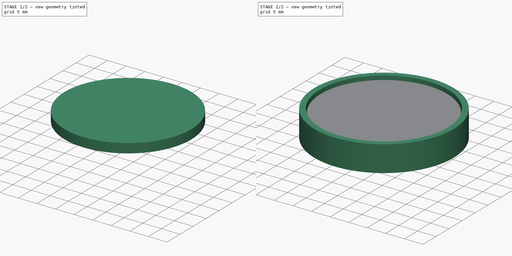
[diagram: build sequence overview — one tinted view per stage of 2, left to right]
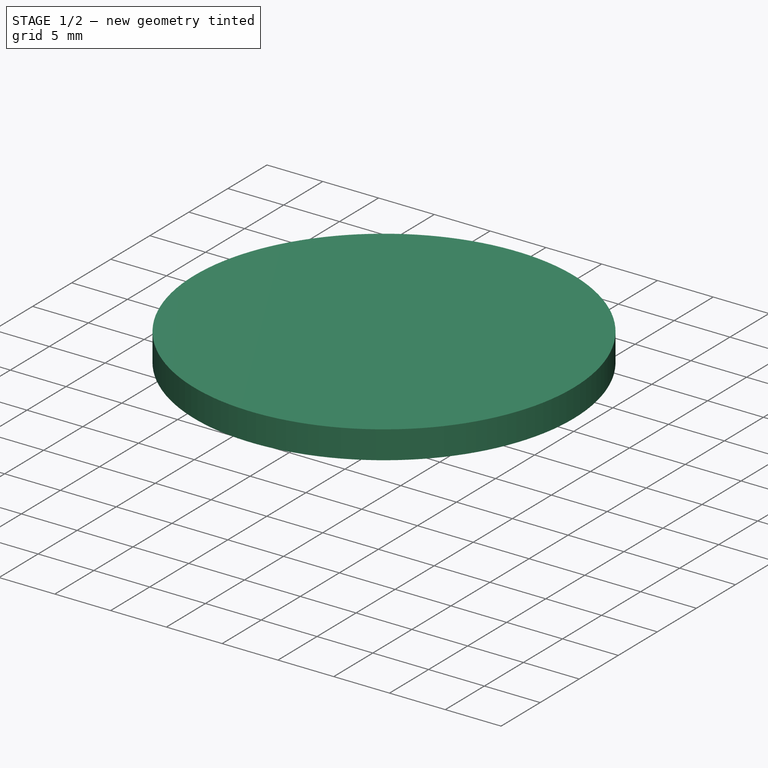
[diagram: stage 1 of 2 — iso view after this stage's code; geometry added in this stage tinted green]
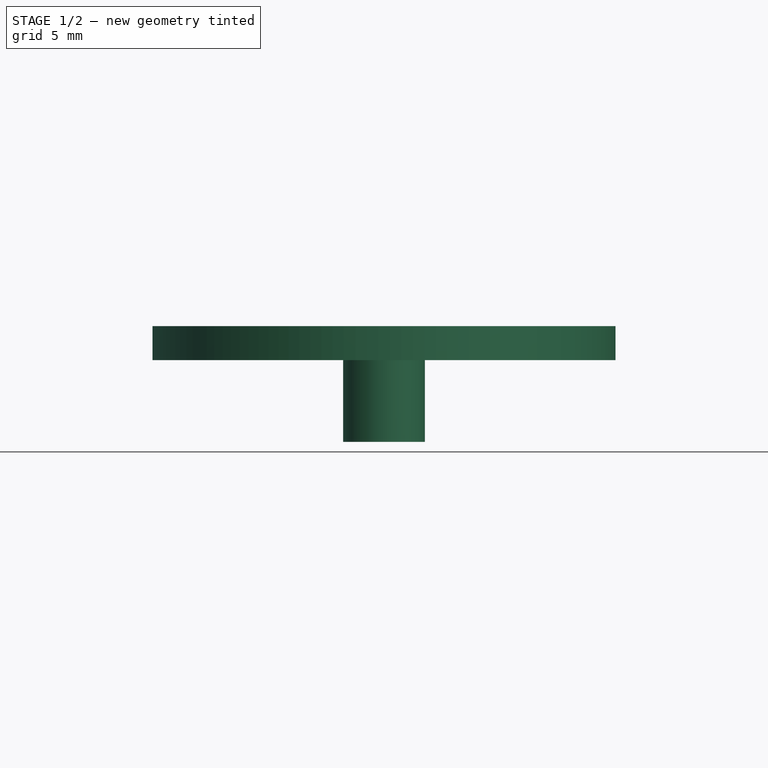
[diagram: stage 1 of 2 — front view after this stage's code; geometry added in this stage tinted green]
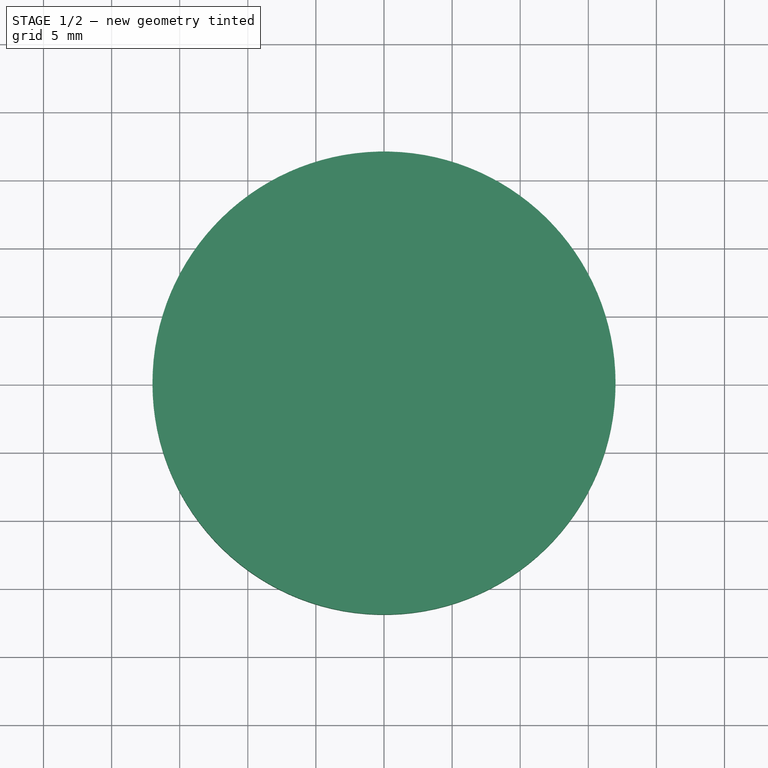
[diagram: stage 1 of 2 — top view after this stage's code; geometry added in this stage tinted green]
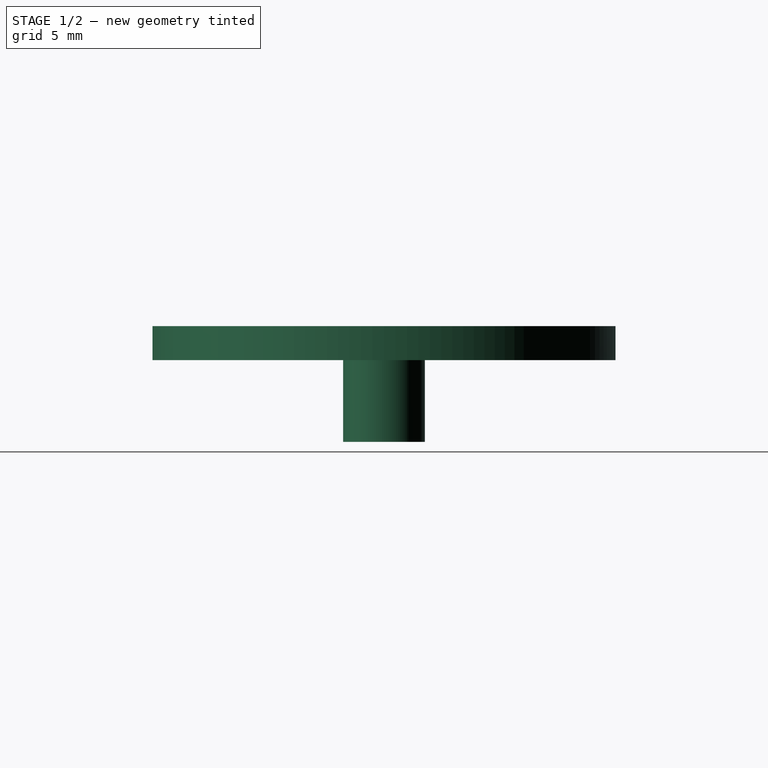
[diagram: stage 1 of 2 — right view after this stage's code; geometry added in this stage tinted green]
FCSTD DOCUMENT  (FreeCAD 0.19R24415 (Git))
Label: ORingMold
License: All rights reserved
LicenseURL: http://en.wikipedia.org/wiki/All_rights_reserved
objects: PartDesign::Body×3, Sketcher::SketchObject×2, PartDesign::Revolution×2, Spreadsheet::Sheet×1, PartDesign::FeatureBase×1
note: 10 computed .brp shape members not serialized (recipe doc carries the construction recipe); baked Part::Feature solids carry a one-line shape summary decoded from their .brp

FEATURE [PartDesign::Body] Body  label="ORingMold_16mm_outer_stl"
  Group = -> [Sketch,Revolution]
  Origin = -> Origin
  Tip = -> Revolution
FEATURE [Sketcher::SketchObject] Sketch001
  FullyConstrained = true
  MapMode = 5
  Placement = pos=(0,0,0) rot=(1,0,0;1.5708rad)
  Support = -> [XZ_Plane001]
  expr: Constraints[3] = <<P>>.thickness
  expr: Constraints[4] = <<P>>.outer_diameter
  sketch-geometry (9):
    g0: ArcOfCircle CenterX=-14.5 CenterY=0 CenterZ=0 NormalX=0 NormalY=0 NormalZ=1 AngleXU=0 Radius=1.5 StartAngle=0 EndAngle=3.14159
    g1: LineSegment StartX=0 StartY=2.5 StartZ=0 EndX=-17 EndY=2.5 EndZ=0
    g2: LineSegment StartX=-17 StartY=2.5 StartZ=0 EndX=-17 EndY=0 EndZ=0
    g3: LineSegment StartX=-17 StartY=2e-16 StartZ=0 EndX=-16 EndY=2e-16 EndZ=0
    g4: GeomPoint X=-14.5 Y=1.5 Z=0
    g5: LineSegment StartX=0 StartY=2.5 StartZ=0 EndX=0 EndY=-6 EndZ=0
    g6: LineSegment StartX=0 StartY=-6 StartZ=0 EndX=-3 EndY=-6 EndZ=0
    g7: LineSegment StartX=-3 StartY=-6 StartZ=0 EndX=-3 EndY=0 EndZ=0
    g8: LineSegment StartX=-3 StartY=0 StartZ=0 EndX=-13 EndY=0 EndZ=0
  constraints (27):
    c: PointOnObject(g0,g-1)
    c: PointOnObject(g0,g-1)
    c: PointOnObject(g0,g-1)
    c: Diameter(g0) = 3
    c: DistanceX(g0,g-1) = 16
    c: Horizontal(g1)
    c: Coincident(g1,g2)
    c: Vertical(g2)
    c: Coincident(g2,g3)
    c: Coincident(g3,g0)
    c: Horizontal(g3)
    c: DistanceX(g3,g3) = 1
    c: PointOnObject(g4,g0)
    c: Vertical(g4,g0)
    c: DistanceY(g4,g1) = 1
    c: PointOnObject(g1,g-2)
    c: Coincident(g1,g5)
    c: PointOnObject(g5,g-2)
    c: Coincident(g5,g6)
    c: Horizontal(g6)
    c: Coincident(g6,g7)
    c: PointOnObject(g7,g-1)
    c: Coincident(g7,g8)
    c: Vertical(g7)
    c: DistanceX(g6,g6) = 3
    c: Coincident(g8,g0)
    c: DistanceY(g7,g7) = 6
FEATURE [PartDesign::Revolution] Revolution001
  Angle = 360
  Axis = (0,2e-16,1)
  Base = (0,0,0)
  Placement = pos=(0,0,0) rot=(1,0,0;1.5708rad)
  Profile = -> Sketch001
  ReferenceAxis = -> Sketch001 [V_Axis]
FEATURE [PartDesign::Body] Body001  label="ORingMold_16mm_inner"
  Group = -> [Sketch001,Revolution001]
  Origin = -> Origin001
  Tip = -> Revolution001
FEATURE [Spreadsheet::Sheet] Spreadsheet  label="P"
  cells = A1=Thickness; B1(thickness)==3mm; A2=OuterDiameter; B2(outer_diameter)==16mm; A3=PrintClearance; B3(print_clearance)==0.2mm
FEATURE [PartDesign::FeatureBase] Clone
  BaseFeature = -> Body001
FEATURE [PartDesign::Body] Body002  label="ORingMold_16mm_inner_stl"
  BaseFeature = -> Body001
  Group = -> [Clone]
  Origin = -> Origin002
  Placement = pos=(0,0,0) rot=(0,1,0;3.14159rad)
  Tip = -> Clone
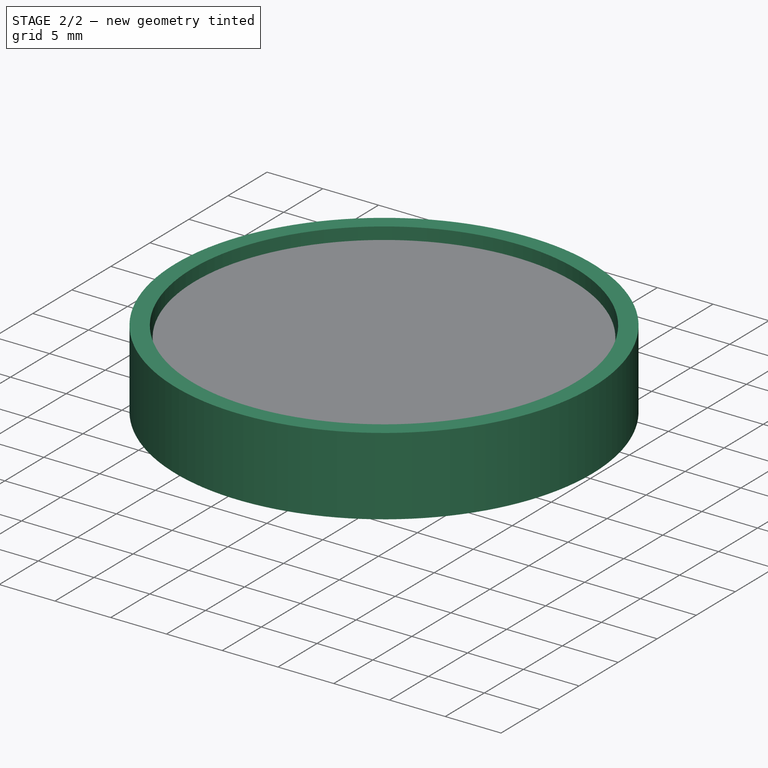
[diagram: stage 2 of 2 — iso view after this stage's code; geometry added in this stage tinted green]
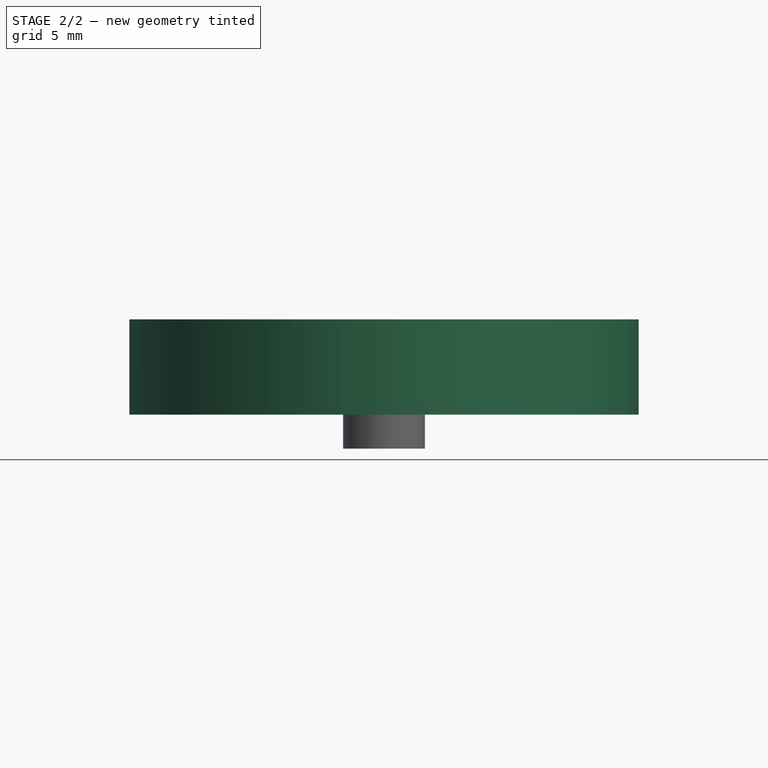
[diagram: stage 2 of 2 — front view after this stage's code; geometry added in this stage tinted green]
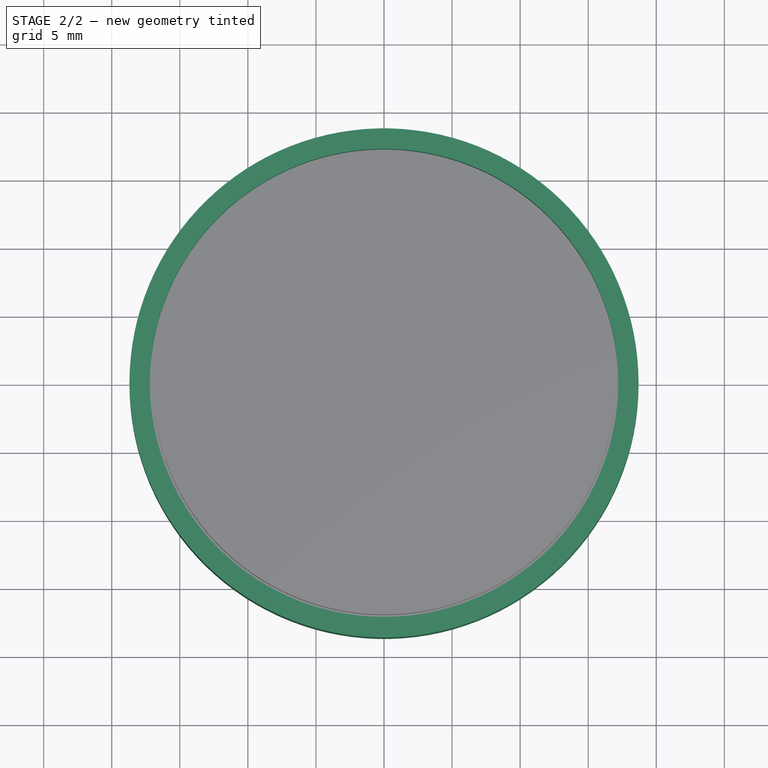
[diagram: stage 2 of 2 — top view after this stage's code; geometry added in this stage tinted green]
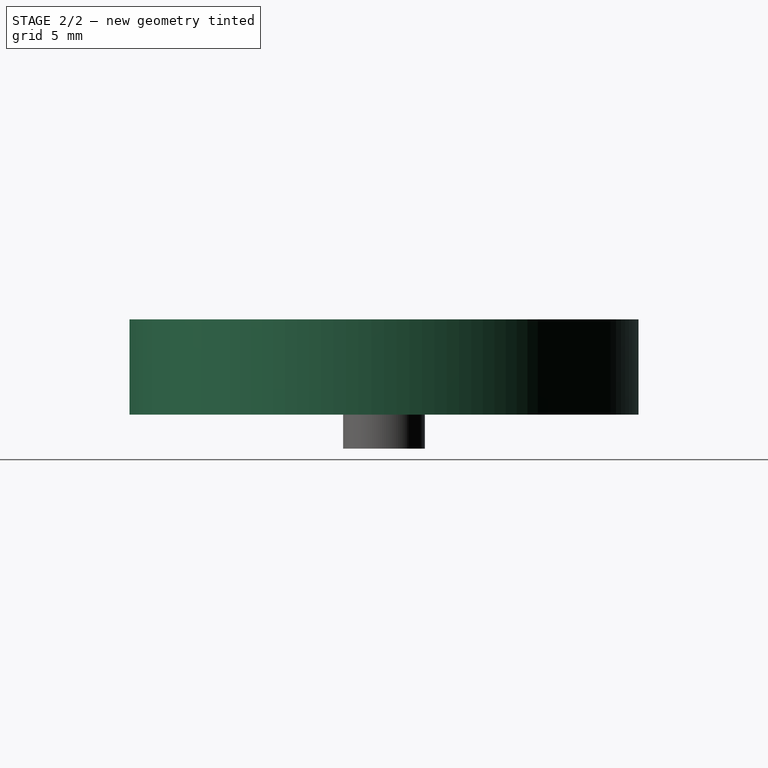
[diagram: stage 2 of 2 — right view after this stage's code; geometry added in this stage tinted green]
FEATURE [Sketcher::SketchObject] Sketch
  FullyConstrained = true
  MapMode = 5
  Placement = pos=(0,0,0) rot=(1,0,0;1.5708rad)
  Support = -> [XZ_Plane]
  expr: Constraints[25] = 3mm + <<P>>.print_clearance
  expr: Constraints[12] = 1mm + <<P>>.print_clearance
  expr: Constraints[10] = <<P>>.thickness
  expr: Constraints[24] = <<P>>.outer_diameter
  sketch-geometry (9):
    g0: LineSegment StartX=-16 StartY=2e-16 StartZ=0 EndX=-17.2 EndY=0 EndZ=0
    g1: LineSegment StartX=-17.2 StartY=0 StartZ=0 EndX=-17.2 EndY=3.5 EndZ=0
    g2: LineSegment StartX=-17.2 StartY=3.5 StartZ=0 EndX=-18.7 EndY=3.5 EndZ=0
    g3: LineSegment StartX=-18.7 StartY=3.5 StartZ=0 EndX=-18.7 EndY=-3.5 EndZ=0
    g4: ArcOfCircle CenterX=-14.5 CenterY=0 CenterZ=0 NormalX=0 NormalY=0 NormalZ=1 AngleXU=0 Radius=1.5 StartAngle=3.14159 EndAngle=6.28319
    g5: GeomPoint X=-14.5 Y=-1.5 Z=0
    g6: LineSegment StartX=-18.7 StartY=-3.5 StartZ=0 EndX=-3.2 EndY=-3.5 EndZ=0
    g7: LineSegment StartX=-3.2 StartY=-3.5 StartZ=0 EndX=-3.2 EndY=0 EndZ=0
    g8: LineSegment StartX=-3.2 StartY=0 StartZ=0 EndX=-13 EndY=0 EndZ=0
  constraints (27):
    c: PointOnObject(g4,g-1)
    c: PointOnObject(g0,g-1)
    c: PointOnObject(g0,g-1)
    c: Coincident(g0,g1)
    c: Coincident(g1,g2)
    c: Horizontal(g2)
    c: Coincident(g2,g3)
    c: Vertical(g3)
    c: PointOnObject(g4,g-1)
    c: Coincident(g4,g0)
    c: Diameter(g4) = 3
    c: Vertical(g1)
    c: DistanceX(g0,g0) = 1.2
    c: PointOnObject(g5,g4)
    c: Vertical(g5,g4)
    c: DistanceY(g3,g5) = 2
    c: DistanceX(g2,g2) = 1.5
    c: Coincident(g6,g3)
    c: Horizontal(g6)
    c: Coincident(g7,g6)
    c: PointOnObject(g7,g-1)
    c: Vertical(g7)
    c: Coincident(g8,g7)
    c: Coincident(g8,g4)
    c: DistanceX(g0,g-1) = 16
    c: DistanceX(g7,g-1) = 3.2
    c: Equal(g7,g1)
FEATURE [PartDesign::Revolution] Revolution  label="Body002"
  Angle = 360
  Axis = (0,2e-16,1)
  Base = (0,0,0)
  Placement = pos=(0,0,0) rot=(1,0,0;1.5708rad)
  Profile = -> Sketch
  ReferenceAxis = -> Sketch [V_Axis]
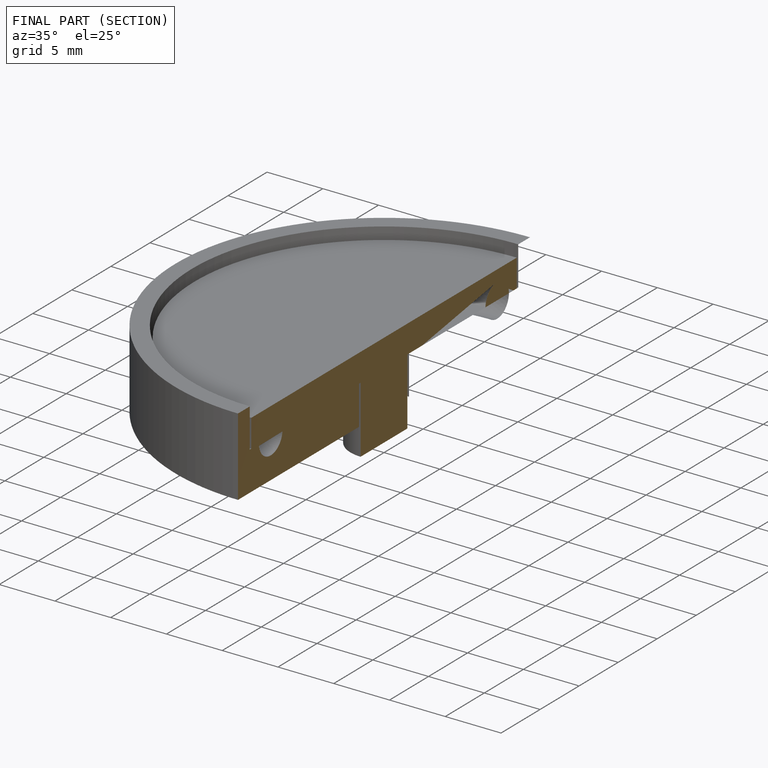
[diagram: finished part — half-section view (interior)]
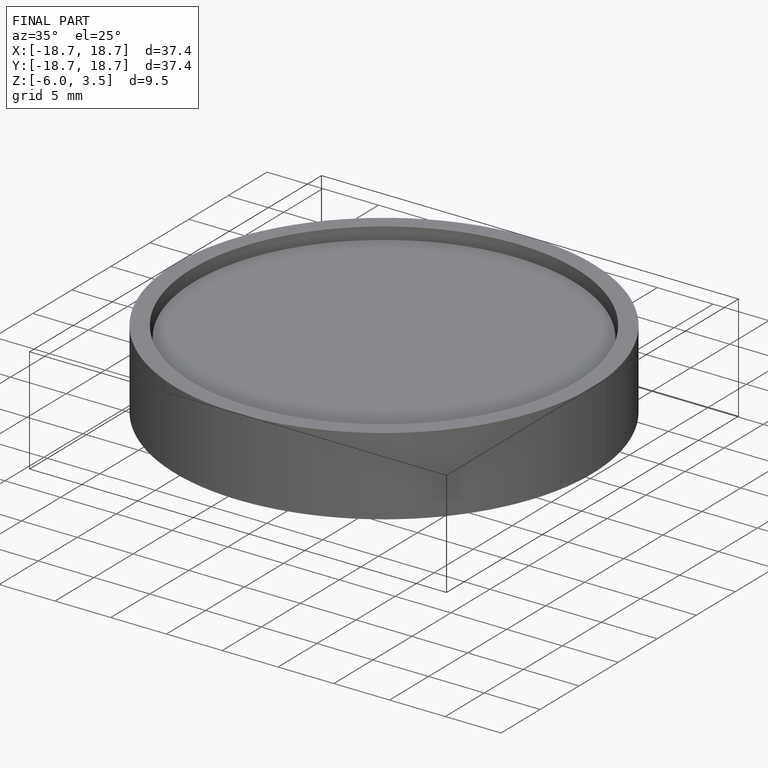
[diagram: finished part — iso view with bounding-box wireframe]
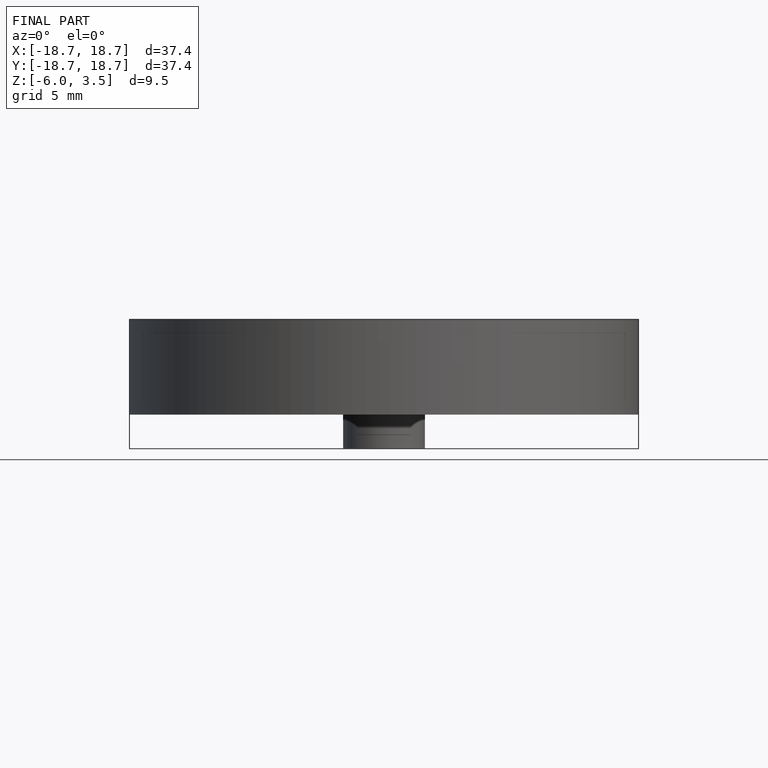
[diagram: finished part — front view with bounding-box wireframe]
